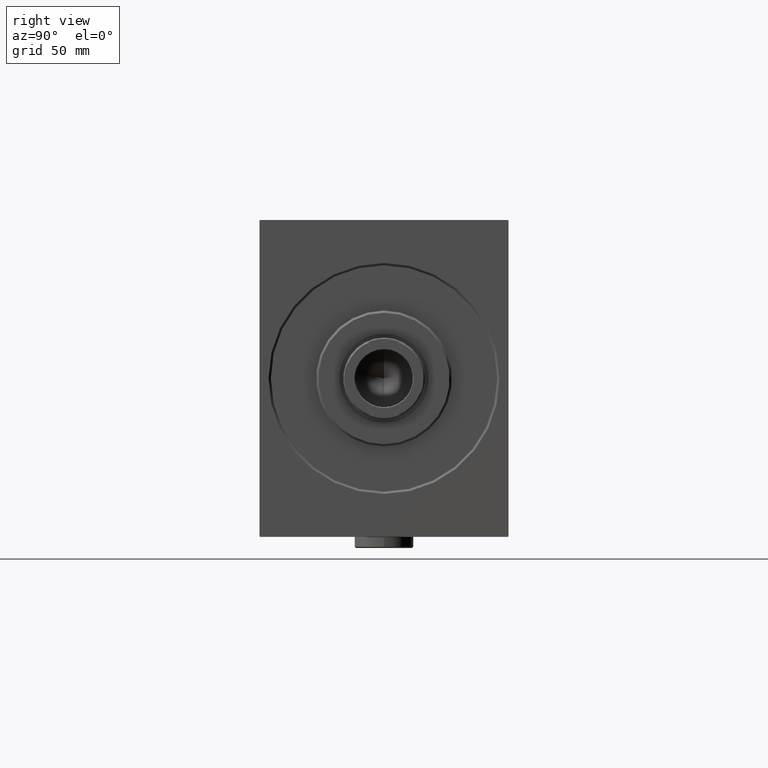
[diagram: clean part render]
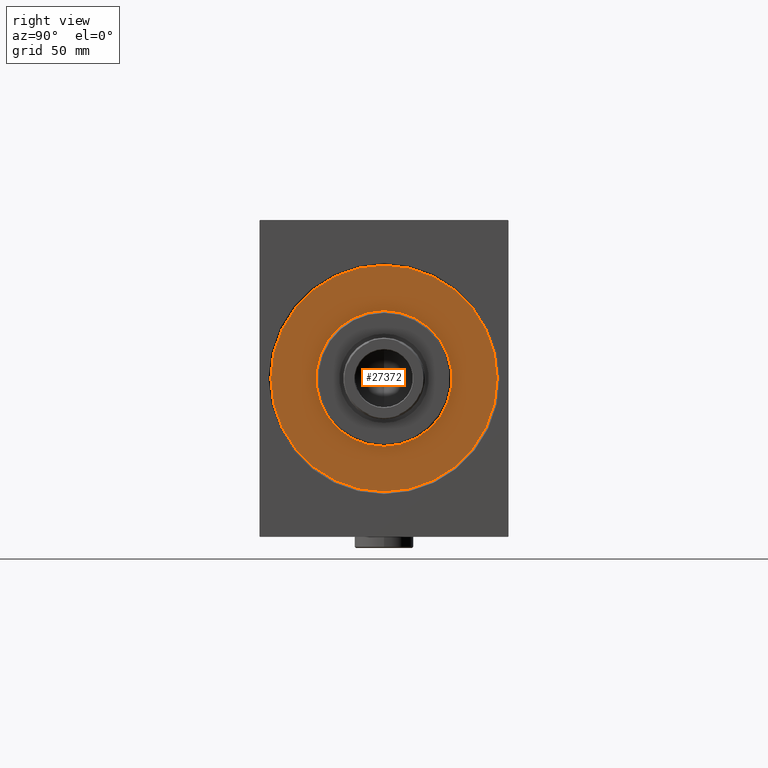
[diagram: same view with one face highlighted and labeled with its STEP entity id]
A machine part, right view. The second image highlights one B-rep face of the part: STEP entity #27372.
In plain terms, the highlighted planar face has unit normal (1, 0, 0).
Its self-contained STEP definition (entity closure, byte-faithful):
#63 = PLANE ( 'NONE',  #2575 ) ;
#2107 = DIRECTION ( 'NONE',  ( 0.000000000000000000, 0.000000000000000000, -1.000000000000000000 ) ) ;
#2311 = EDGE_LOOP ( 'NONE', ( #15552, #6482 ) ) ;
#2575 = AXIS2_PLACEMENT_3D ( 'NONE', #13756, #27447, #41104 ) ;
#3203 = FACE_OUTER_BOUND ( 'NONE', #7602, .T. ) ;
#3776 = CARTESIAN_POINT ( 'NONE',  ( 0.000000000000000000, 0.000000000000000000, 0.000000000000000000 ) ) ;
#4381 = CARTESIAN_POINT ( 'NONE',  ( 0.000000000000000000, 0.000000000000000000, 30.00000000000000000 ) ) ;
#4631 = CARTESIAN_POINT ( 'NONE',  ( 0.000000000000000000, 0.000000000000000000, -50.00000000000000000 ) ) ;
#4962 = EDGE_CURVE ( 'NONE', #24511, #17154, #5231, .T. ) ;
#5231 = CIRCLE ( 'NONE', #30316, 50.00000000000000000 ) ;
#6482 = ORIENTED_EDGE ( 'NONE', *, *, #34681, .F. ) ;
#6736 = CARTESIAN_POINT ( 'NONE',  ( 0.000000000000000000, 3.673940397442059178E-15, -30.00000000000000000 ) ) ;
#7602 = EDGE_LOOP ( 'NONE', ( #37061, #29871 ) ) ;
#8840 = DIRECTION ( 'NONE',  ( 1.000000000000000000, -0.000000000000000000, 0.000000000000000000 ) ) ;
#12104 = EDGE_CURVE ( 'NONE', #24430, #16714, #43518, .T. ) ;
#12225 = CARTESIAN_POINT ( 'NONE',  ( 0.000000000000000000, 6.123233995736766085E-15, 50.00000000000000000 ) ) ;
#13756 = CARTESIAN_POINT ( 'NONE',  ( 0.000000000000000000, 0.000000000000000000, 0.000000000000000000 ) ) ;
#15552 = ORIENTED_EDGE ( 'NONE', *, *, #12104, .F. ) ;
#16714 = VERTEX_POINT ( 'NONE', #6736 ) ;
#17154 = VERTEX_POINT ( 'NONE', #4631 ) ;
#17654 = CARTESIAN_POINT ( 'NONE',  ( 0.000000000000000000, 0.000000000000000000, 0.000000000000000000 ) ) ;
#17696 = AXIS2_PLACEMENT_3D ( 'NONE', #26336, #8840, #2107 ) ;
#21592 = DIRECTION ( 'NONE',  ( 0.000000000000000000, 0.000000000000000000, -1.000000000000000000 ) ) ;
#24389 = DIRECTION ( 'NONE',  ( 1.000000000000000000, 0.000000000000000000, 0.000000000000000000 ) ) ;
#24430 = VERTEX_POINT ( 'NONE', #4381 ) ;
#24511 = VERTEX_POINT ( 'NONE', #12225 ) ;
#24958 = CARTESIAN_POINT ( 'NONE',  ( 0.000000000000000000, 0.000000000000000000, 0.000000000000000000 ) ) ;
#25033 = AXIS2_PLACEMENT_3D ( 'NONE', #17654, #24389, #27537 ) ;
#25640 = AXIS2_PLACEMENT_3D ( 'NONE', #24958, #38616, #21592 ) ;
#26336 = CARTESIAN_POINT ( 'NONE',  ( 0.000000000000000000, 0.000000000000000000, 0.000000000000000000 ) ) ;
#27228 = FACE_BOUND ( 'NONE', #2311, .T. ) ;
#27372 = ADVANCED_FACE ( 'NONE', ( #3203, #27228 ), #63, .T. ) ;
#27447 = DIRECTION ( 'NONE',  ( 1.000000000000000000, 0.000000000000000000, 0.000000000000000000 ) ) ;
#27537 = DIRECTION ( 'NONE',  ( 0.000000000000000000, 0.000000000000000000, -1.000000000000000000 ) ) ;
#27799 = DIRECTION ( 'NONE',  ( 1.000000000000000000, 0.000000000000000000, 0.000000000000000000 ) ) ;
#27914 = CIRCLE ( 'NONE', #25033, 50.00000000000000000 ) ;
#29871 = ORIENTED_EDGE ( 'NONE', *, *, #4962, .T. ) ;
#30316 = AXIS2_PLACEMENT_3D ( 'NONE', #3776, #27799, #41457 ) ;
#34681 = EDGE_CURVE ( 'NONE', #16714, #24430, #35616, .T. ) ;
#35616 = CIRCLE ( 'NONE', #17696, 30.00000000000000000 ) ;
#37061 = ORIENTED_EDGE ( 'NONE', *, *, #41166, .T. ) ;
#38616 = DIRECTION ( 'NONE',  ( 1.000000000000000000, -0.000000000000000000, 0.000000000000000000 ) ) ;
#41104 = DIRECTION ( 'NONE',  ( 0.000000000000000000, 0.000000000000000000, -1.000000000000000000 ) ) ;
#41166 = EDGE_CURVE ( 'NONE', #17154, #24511, #27914, .T. ) ;
#41457 = DIRECTION ( 'NONE',  ( 0.000000000000000000, 0.000000000000000000, -1.000000000000000000 ) ) ;
#43518 = CIRCLE ( 'NONE', #25640, 30.00000000000000000 ) ;